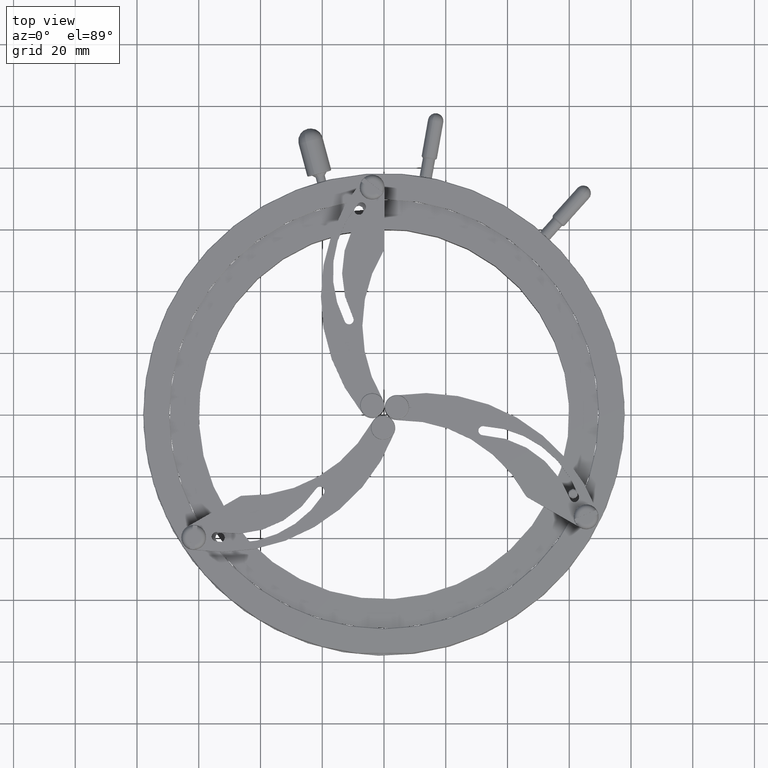
[diagram: clean part render]
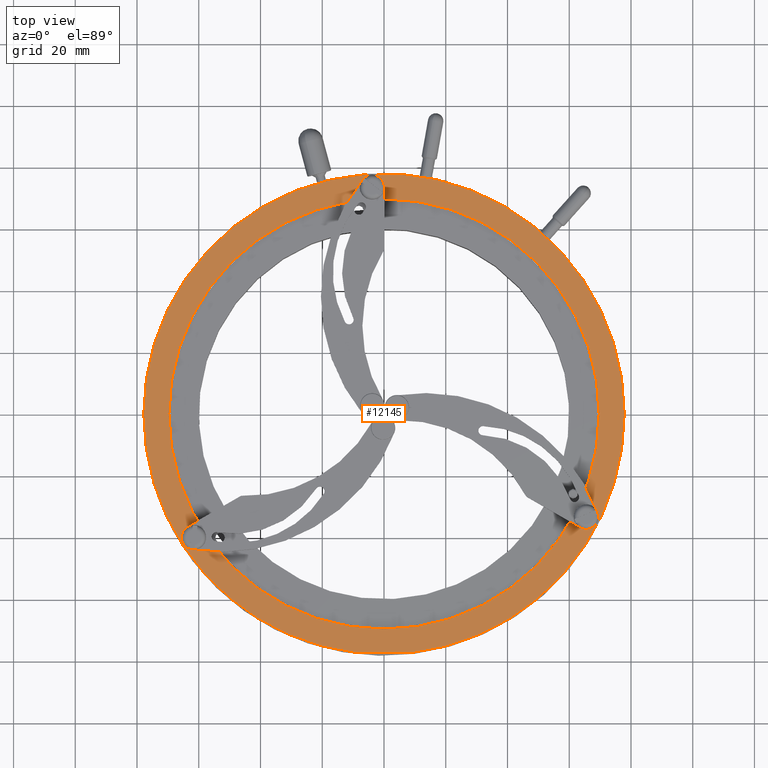
[diagram: same view with one face highlighted and labeled with its STEP entity id]
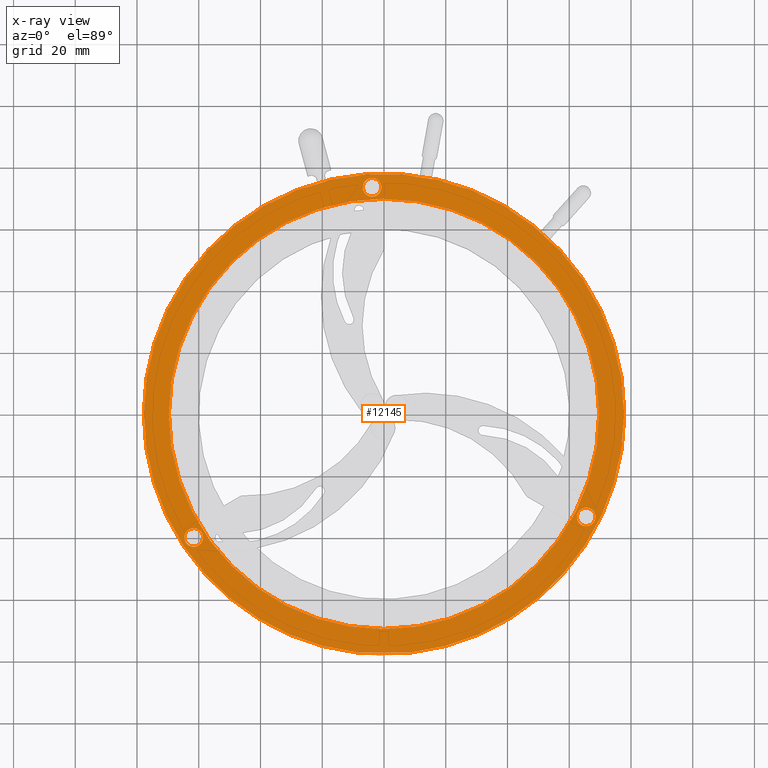
[diagram: x-ray of the same camera — body ghosted, the highlighted face saturated]
A machine part, top view. The second image highlights one B-rep face of the part: STEP entity #12145.
The next image is the same camera in x-ray: the body ghosted, the highlighted face saturated — about 0% of this face is hidden behind the body in this view.
In plain terms, the highlighted planar face has unit normal (0, 0, 1).
Its self-contained STEP definition (entity closure, byte-faithful):
#195 = CARTESIAN_POINT ( 'NONE',  ( 0.000000000000000000, 0.000000000000000000, 9.000000000000000000 ) ) ;
#331 = AXIS2_PLACEMENT_3D ( 'NONE', #9849, #6715, #4928 ) ;
#415 = DIRECTION ( 'NONE',  ( 0.000000000000000000, 0.000000000000000000, 1.000000000000000000 ) ) ;
#433 = FACE_BOUND ( 'NONE', #639, .T. ) ;
#501 = DIRECTION ( 'NONE',  ( 0.000000000000000000, 0.000000000000000000, 1.000000000000000000 ) ) ;
#564 = PLANE ( 'NONE',  #5765 ) ;
#565 = ORIENTED_EDGE ( 'NONE', *, *, #2084, .F. ) ;
#639 = EDGE_LOOP ( 'NONE', ( #979, #3433 ) ) ;
#724 = DIRECTION ( 'NONE',  ( 1.000000000000000000, 0.000000000000000000, 0.000000000000000000 ) ) ;
#971 = LINE ( 'NONE', #8636, #3386 ) ;
#979 = ORIENTED_EDGE ( 'NONE', *, *, #9957, .F. ) ;
#992 = EDGE_CURVE ( 'NONE', #2714, #7265, #971, .T. ) ;
#1070 = VERTEX_POINT ( 'NONE', #8765 ) ;
#1243 = EDGE_LOOP ( 'NONE', ( #2809, #7077 ) ) ;
#1252 = CARTESIAN_POINT ( 'NONE',  ( 8.806247782114809297, -77.30000000000002558, 9.000000000000000000 ) ) ;
#1279 = EDGE_LOOP ( 'NONE', ( #2898, #565 ) ) ;
#1431 = VERTEX_POINT ( 'NONE', #8234 ) ;
#1514 = FACE_BOUND ( 'NONE', #1279, .T. ) ;
#1525 = CARTESIAN_POINT ( 'NONE',  ( 65.48897952784442111, -33.36830173085785844, 9.000000000000000000 ) ) ;
#1593 = CARTESIAN_POINT ( 'NONE',  ( 77.80000000000003979, 9.539998565357881610E-15, 9.000000000000000000 ) ) ;
#1645 = DIRECTION ( 'NONE',  ( -0.4999999999999911182, 0.8660254037844439257, 0.000000000000000000 ) ) ;
#1850 = CIRCLE ( 'NONE', #3466, 77.80000000000003979 ) ;
#2084 = EDGE_CURVE ( 'NONE', #6524, #6172, #7226, .T. ) ;
#2172 = DIRECTION ( 'NONE',  ( -0.5000000000000035527, -0.8660254037844365982, 0.000000000000000000 ) ) ;
#2356 = AXIS2_PLACEMENT_3D ( 'NONE', #2437, #415, #2375 ) ;
#2375 = DIRECTION ( 'NONE',  ( -0.4999999999999911182, 0.8660254037844439257, 0.000000000000000000 ) ) ;
#2400 = AXIS2_PLACEMENT_3D ( 'NONE', #8128, #11705, #8868 ) ;
#2437 = CARTESIAN_POINT ( 'NONE',  ( 65.48897952784442111, -33.36830173085785844, 9.000000000000000000 ) ) ;
#2714 = VERTEX_POINT ( 'NONE', #5890 ) ;
#2809 = ORIENTED_EDGE ( 'NONE', *, *, #10413, .F. ) ;
#2829 = DIRECTION ( 'NONE',  ( 1.000000000000000000, 0.000000000000000000, 0.000000000000000000 ) ) ;
#2898 = ORIENTED_EDGE ( 'NONE', *, *, #8171, .F. ) ;
#2927 = EDGE_CURVE ( 'NONE', #6535, #7166, #10796, .T. ) ;
#3105 = CARTESIAN_POINT ( 'NONE',  ( -3.846692783855399700, 73.39927080446123853, 9.000000000000000000 ) ) ;
#3140 = CIRCLE ( 'NONE', #4944, 3.000000000000002665 ) ;
#3259 = AXIS2_PLACEMENT_3D ( 'NONE', #12346, #9344, #724 ) ;
#3282 = AXIS2_PLACEMENT_3D ( 'NONE', #3105, #6071, #2172 ) ;
#3386 = VECTOR ( 'NONE', #10525, 1000.000000000000000 ) ;
#3433 = ORIENTED_EDGE ( 'NONE', *, *, #11962, .F. ) ;
#3466 = AXIS2_PLACEMENT_3D ( 'NONE', #5803, #6428, #9636 ) ;
#3474 = ORIENTED_EDGE ( 'NONE', *, *, #4508, .T. ) ;
#3744 = CIRCLE ( 'NONE', #10997, 77.80000000000003979 ) ;
#3931 = DIRECTION ( 'NONE',  ( 1.000000000000000000, 0.000000000000000000, 0.000000000000000000 ) ) ;
#3970 = ORIENTED_EDGE ( 'NONE', *, *, #10636, .T. ) ;
#4040 = ORIENTED_EDGE ( 'NONE', *, *, #8659, .T. ) ;
#4133 = EDGE_LOOP ( 'NONE', ( #3474, #8648, #8674, #4691 ) ) ;
#4337 = CARTESIAN_POINT ( 'NONE',  ( -64.64228674398900409, -40.03096907360394852, 9.000000000000000000 ) ) ;
#4352 = CIRCLE ( 'NONE', #331, 3.000000000000002665 ) ;
#4508 = EDGE_CURVE ( 'NONE', #7265, #11760, #1850, .T. ) ;
#4691 = ORIENTED_EDGE ( 'NONE', *, *, #992, .T. ) ;
#4928 = DIRECTION ( 'NONE',  ( 1.000000000000000000, 0.000000000000000000, 0.000000000000000000 ) ) ;
#4944 = AXIS2_PLACEMENT_3D ( 'NONE', #8041, #7043, #3931 ) ;
#5077 = CIRCLE ( 'NONE', #6096, 77.80000000000003979 ) ;
#5231 = CARTESIAN_POINT ( 'NONE',  ( 0.000000000000000000, 0.000000000000000000, 9.000000000000000000 ) ) ;
#5302 = CARTESIAN_POINT ( 'NONE',  ( -69.69999999999996021, 8.535788190057045822E-15, 9.000000000000000000 ) ) ;
#5453 = CARTESIAN_POINT ( 'NONE',  ( -5.346692783855412578, 70.80119459310792251, 9.000000000000000000 ) ) ;
#5731 = DIRECTION ( 'NONE',  ( -0.000000000000000000, -0.000000000000000000, -1.000000000000000000 ) ) ;
#5765 = AXIS2_PLACEMENT_3D ( 'NONE', #11136, #501, #10938 ) ;
#5803 = CARTESIAN_POINT ( 'NONE',  ( 0.000000000000000000, 0.000000000000000000, 9.000000000000000000 ) ) ;
#5890 = CARTESIAN_POINT ( 'NONE',  ( -8.806247782114821732, -77.30000000000002558, 9.000000000000000000 ) ) ;
#5964 = CIRCLE ( 'NONE', #9382, 69.69999999999996021 ) ;
#6057 = EDGE_CURVE ( 'NONE', #11760, #1431, #5077, .T. ) ;
#6071 = DIRECTION ( 'NONE',  ( 0.000000000000000000, 0.000000000000000000, 1.000000000000000000 ) ) ;
#6096 = AXIS2_PLACEMENT_3D ( 'NONE', #8163, #10928, #11985 ) ;
#6172 = VERTEX_POINT ( 'NONE', #5453 ) ;
#6294 = FACE_BOUND ( 'NONE', #1243, .T. ) ;
#6421 = FACE_OUTER_BOUND ( 'NONE', #4133, .T. ) ;
#6428 = DIRECTION ( 'NONE',  ( 0.000000000000000000, 0.000000000000000000, 1.000000000000000000 ) ) ;
#6524 = VERTEX_POINT ( 'NONE', #12003 ) ;
#6535 = VERTEX_POINT ( 'NONE', #8986 ) ;
#6715 = DIRECTION ( 'NONE',  ( 0.000000000000000000, 0.000000000000000000, 1.000000000000000000 ) ) ;
#7043 = DIRECTION ( 'NONE',  ( 0.000000000000000000, 0.000000000000000000, 1.000000000000000000 ) ) ;
#7077 = ORIENTED_EDGE ( 'NONE', *, *, #2927, .F. ) ;
#7166 = VERTEX_POINT ( 'NONE', #12215 ) ;
#7226 = CIRCLE ( 'NONE', #2400, 3.000000000000005773 ) ;
#7265 = VERTEX_POINT ( 'NONE', #1252 ) ;
#7501 = CIRCLE ( 'NONE', #3282, 3.000000000000005773 ) ;
#7764 = CIRCLE ( 'NONE', #2356, 3.000000000000000444 ) ;
#8041 = CARTESIAN_POINT ( 'NONE',  ( -61.64228674398899699, -40.03096907360394852, 9.000000000000000000 ) ) ;
#8128 = CARTESIAN_POINT ( 'NONE',  ( -3.846692783855399700, 73.39927080446123853, 9.000000000000000000 ) ) ;
#8163 = CARTESIAN_POINT ( 'NONE',  ( 0.000000000000000000, 0.000000000000000000, 9.000000000000000000 ) ) ;
#8171 = EDGE_CURVE ( 'NONE', #6172, #6524, #7501, .T. ) ;
#8234 = CARTESIAN_POINT ( 'NONE',  ( -77.80000000000003979, 0.000000000000000000, 9.000000000000000000 ) ) ;
#8483 = VERTEX_POINT ( 'NONE', #5302 ) ;
#8636 = CARTESIAN_POINT ( 'NONE',  ( 8.817596044274445433, -77.30000000000002558, 9.000000000000000000 ) ) ;
#8648 = ORIENTED_EDGE ( 'NONE', *, *, #6057, .T. ) ;
#8659 = EDGE_CURVE ( 'NONE', #1070, #8483, #10671, .T. ) ;
#8674 = ORIENTED_EDGE ( 'NONE', *, *, #10785, .T. ) ;
#8765 = CARTESIAN_POINT ( 'NONE',  ( 69.69999999999996021, 0.000000000000000000, 9.000000000000000000 ) ) ;
#8868 = DIRECTION ( 'NONE',  ( -0.5000000000000035527, -0.8660254037844365982, 0.000000000000000000 ) ) ;
#8986 = CARTESIAN_POINT ( 'NONE',  ( 66.98897952784439269, -35.96637794221118156, 9.000000000000000000 ) ) ;
#9135 = EDGE_LOOP ( 'NONE', ( #4040, #3970 ) ) ;
#9178 = FACE_BOUND ( 'NONE', #9135, .T. ) ;
#9226 = VERTEX_POINT ( 'NONE', #4337 ) ;
#9344 = DIRECTION ( 'NONE',  ( -0.000000000000000000, -0.000000000000000000, -1.000000000000000000 ) ) ;
#9382 = AXIS2_PLACEMENT_3D ( 'NONE', #195, #5731, #2829 ) ;
#9636 = DIRECTION ( 'NONE',  ( 1.000000000000000000, 0.000000000000000000, 0.000000000000000000 ) ) ;
#9788 = VERTEX_POINT ( 'NONE', #11197 ) ;
#9821 = DIRECTION ( 'NONE',  ( 1.000000000000000000, 0.000000000000000000, 0.000000000000000000 ) ) ;
#9849 = CARTESIAN_POINT ( 'NONE',  ( -61.64228674398899699, -40.03096907360394852, 9.000000000000000000 ) ) ;
#9948 = DIRECTION ( 'NONE',  ( 0.000000000000000000, 0.000000000000000000, 1.000000000000000000 ) ) ;
#9957 = EDGE_CURVE ( 'NONE', #9788, #9226, #4352, .T. ) ;
#10216 = AXIS2_PLACEMENT_3D ( 'NONE', #1525, #10250, #1645 ) ;
#10250 = DIRECTION ( 'NONE',  ( 0.000000000000000000, 0.000000000000000000, 1.000000000000000000 ) ) ;
#10413 = EDGE_CURVE ( 'NONE', #7166, #6535, #7764, .T. ) ;
#10525 = DIRECTION ( 'NONE',  ( 1.000000000000000000, 2.358123303464582969E-16, 0.000000000000000000 ) ) ;
#10636 = EDGE_CURVE ( 'NONE', #8483, #1070, #5964, .T. ) ;
#10671 = CIRCLE ( 'NONE', #3259, 69.69999999999996021 ) ;
#10785 = EDGE_CURVE ( 'NONE', #1431, #2714, #3744, .T. ) ;
#10796 = CIRCLE ( 'NONE', #10216, 3.000000000000000444 ) ;
#10928 = DIRECTION ( 'NONE',  ( 0.000000000000000000, 0.000000000000000000, 1.000000000000000000 ) ) ;
#10938 = DIRECTION ( 'NONE',  ( 1.000000000000000000, 0.000000000000000000, -0.000000000000000000 ) ) ;
#10997 = AXIS2_PLACEMENT_3D ( 'NONE', #5231, #9948, #9821 ) ;
#11136 = CARTESIAN_POINT ( 'NONE',  ( 0.000000000000000000, 0.000000000000000000, 9.000000000000000000 ) ) ;
#11197 = CARTESIAN_POINT ( 'NONE',  ( -58.64228674398899699, -40.03096907360394852, 9.000000000000000000 ) ) ;
#11705 = DIRECTION ( 'NONE',  ( 0.000000000000000000, 0.000000000000000000, 1.000000000000000000 ) ) ;
#11760 = VERTEX_POINT ( 'NONE', #1593 ) ;
#11962 = EDGE_CURVE ( 'NONE', #9226, #9788, #3140, .T. ) ;
#11985 = DIRECTION ( 'NONE',  ( 1.000000000000000000, 0.000000000000000000, 0.000000000000000000 ) ) ;
#12003 = CARTESIAN_POINT ( 'NONE',  ( -2.346692783855385933, 75.99734701581455454, 9.000000000000000000 ) ) ;
#12145 = ADVANCED_FACE ( 'NONE', ( #6294, #1514, #433, #9178, #6421 ), #564, .T. ) ;
#12215 = CARTESIAN_POINT ( 'NONE',  ( 63.98897952784444954, -30.77022551950452467, 9.000000000000000000 ) ) ;
#12346 = CARTESIAN_POINT ( 'NONE',  ( 0.000000000000000000, 0.000000000000000000, 9.000000000000000000 ) ) ;